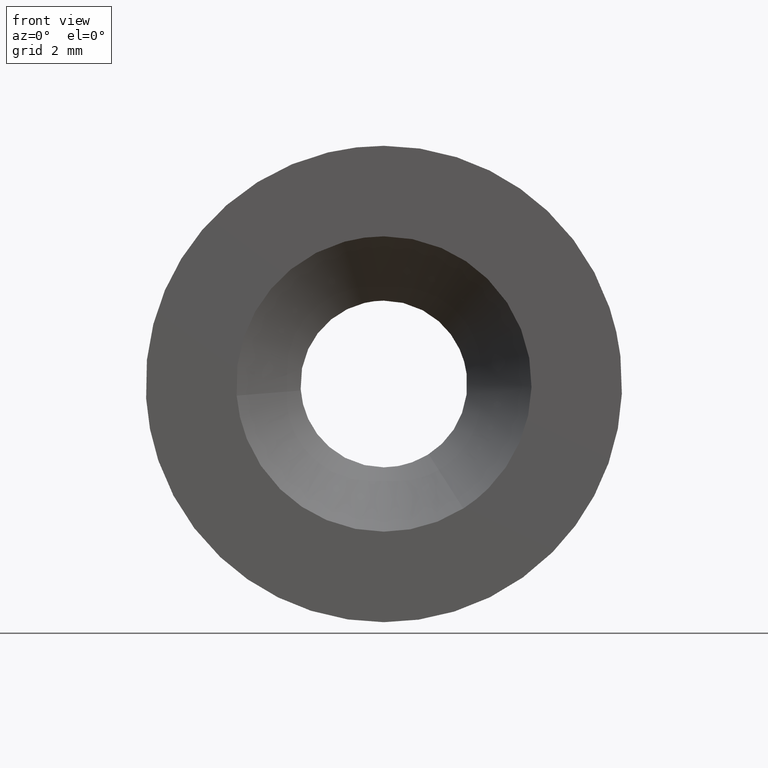
[diagram: clean part render]
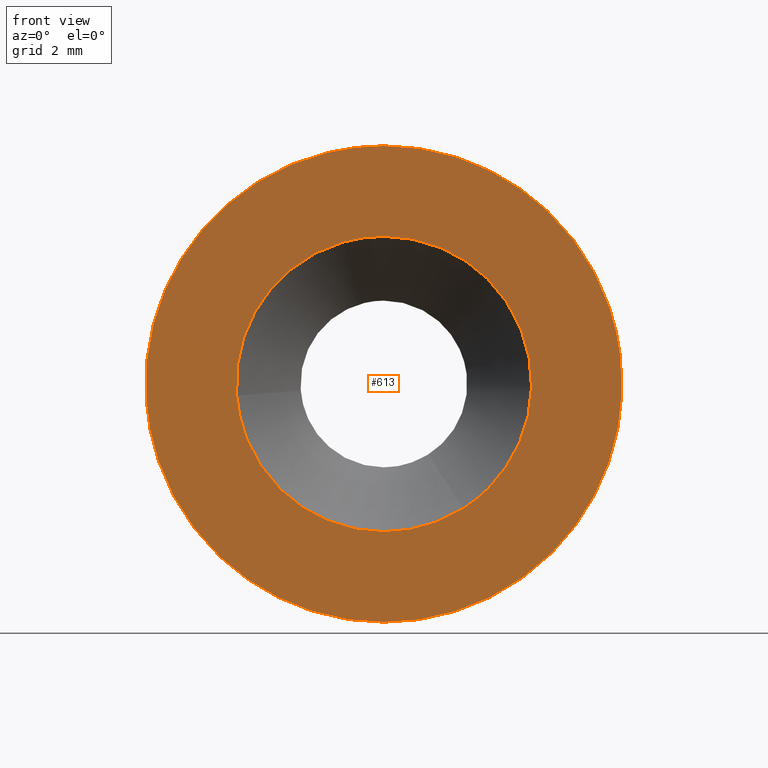
[diagram: same view with one face highlighted and labeled with its STEP entity id]
A machine part, front view. The second image highlights one B-rep face of the part: STEP entity #613.
In plain terms, the highlighted face is a freeform B-spline surface patch.
Its self-contained STEP definition (entity closure, byte-faithful):
#85=CARTESIAN_POINT('',(1.667337459685583,-6.000000000000142,-2.613424151478305));
#86=VERTEX_POINT('',#85);
#92=CARTESIAN_POINT('',(0.0,-6.0,3.100000000000000));
#93=VERTEX_POINT('',#92);
#94=CARTESIAN_POINT('',(0.0,-6.0,3.100000000000000));
#95=CARTESIAN_POINT('',(3.100000000000000,-6.0,3.100000000000000));
#96=CARTESIAN_POINT('',(3.100000000000000,-6.0,0.0));
#97=CARTESIAN_POINT('',(3.100000000000000,-6.0,-1.699400333642098));
#98=CARTESIAN_POINT('',(1.667337459685584,-6.000000000000142,-2.613424151478305));
#106=(BOUNDED_CURVE()B_SPLINE_CURVE(2,(#94,#95,#96,#97,#98),.UNSPECIFIED.,.F.,.U.)B_SPLINE_CURVE_WITH_KNOTS((3,2,3),(0.0,0.250000000000000,0.407950112627304),.UNSPECIFIED.)CURVE()GEOMETRIC_REPRESENTATION_ITEM()RATIONAL_B_SPLINE_CURVE((1.0,0.707106781186547,1.0,0.814949932402566,0.863729296954772))REPRESENTATION_ITEM(''));
#107=EDGE_CURVE('',#93,#86,#106,.T.);
#109=CARTESIAN_POINT('',(-3.090443734573221,-6.000000000001325,-0.243223196766532));
#110=VERTEX_POINT('',#109);
#111=CARTESIAN_POINT('',(-3.090443734573222,-6.000000000001325,-0.243223196766532));
#112=CARTESIAN_POINT('',(-3.100000000000000,-6.0,-0.121799331733931));
#113=CARTESIAN_POINT('',(-3.100000000000000,-6.0,0.0));
#114=CARTESIAN_POINT('',(-3.100000000000000,-6.0,3.100000000000000));
#115=CARTESIAN_POINT('',(0.0,-6.0,3.100000000000000));
#123=(BOUNDED_CURVE()B_SPLINE_CURVE(2,(#111,#112,#113,#114,#115),.UNSPECIFIED.,.F.,.U.)B_SPLINE_CURVE_WITH_KNOTS((3,2,3),(0.736331300631646,0.750000000000000,1.0),.UNSPECIFIED.)CURVE()GEOMETRIC_REPRESENTATION_ITEM()RATIONAL_B_SPLINE_CURVE((0.969723356169475,0.983986122580037,1.0,0.707106781186547,1.0))REPRESENTATION_ITEM(''));
#124=EDGE_CURVE('',#110,#93,#123,.T.);
#228=CARTESIAN_POINT('',(0.0,-6.0,-3.100000000000000));
#229=VERTEX_POINT('',#228);
#230=CARTESIAN_POINT('',(0.0,-6.0,-3.100000000000000));
#231=CARTESIAN_POINT('',(-2.865610524121626,-6.0,-3.100000000000000));
#232=CARTESIAN_POINT('',(-3.090443734573221,-6.000000000001325,-0.243223196766532));
#240=(BOUNDED_CURVE()B_SPLINE_CURVE(2,(#230,#231,#232),.UNSPECIFIED.,.F.,.U.)B_SPLINE_CURVE_WITH_KNOTS((3,3),(0.500000000000000,0.736331300631645),.UNSPECIFIED.)CURVE()GEOMETRIC_REPRESENTATION_ITEM()RATIONAL_B_SPLINE_CURVE((1.0,0.723120658606511,0.969723356169474))REPRESENTATION_ITEM(''));
#241=EDGE_CURVE('',#229,#110,#240,.T.);
#243=CARTESIAN_POINT('',(1.667337459685584,-6.000000000000142,-2.613424151478305));
#244=CARTESIAN_POINT('',(0.904666971678652,-6.000000000000001,-3.100000000000000));
#245=CARTESIAN_POINT('',(0.0,-6.0,-3.100000000000000));
#253=(BOUNDED_CURVE()B_SPLINE_CURVE(2,(#243,#244,#245),.UNSPECIFIED.,.F.,.U.)B_SPLINE_CURVE_WITH_KNOTS((3,3),(0.407950112627304,0.500000000000000),.UNSPECIFIED.)CURVE()GEOMETRIC_REPRESENTATION_ITEM()RATIONAL_B_SPLINE_CURVE((0.863729296954772,0.892156848783981,1.0))REPRESENTATION_ITEM(''));
#254=EDGE_CURVE('',#86,#229,#253,.T.);
#433=CARTESIAN_POINT('',(4.965048002999415,-6.0,0.590168050559857));
#434=VERTEX_POINT('',#433);
#440=CARTESIAN_POINT('',(0.0,-6.0,-5.0));
#441=VERTEX_POINT('',#440);
#442=CARTESIAN_POINT('',(4.965048002999415,-6.000000000000001,0.590168050559857));
#443=CARTESIAN_POINT('',(5.0,-6.0,0.296119020391211));
#444=CARTESIAN_POINT('',(5.0,-6.0,0.0));
#445=CARTESIAN_POINT('',(5.000000000000001,-6.0,-5.000000000000001));
#446=CARTESIAN_POINT('',(0.0,-6.0,-5.0));
#454=(BOUNDED_CURVE()B_SPLINE_CURVE(2,(#442,#443,#444,#445,#446),.UNSPECIFIED.,.F.,.U.)B_SPLINE_CURVE_WITH_KNOTS((3,2,3),(0.229562579808786,0.250000000000000,0.500000000000000),.UNSPECIFIED.)CURVE()GEOMETRIC_REPRESENTATION_ITEM()RATIONAL_B_SPLINE_CURVE((0.956026962526900,0.976056072863809,1.0,0.707106781186548,1.0))REPRESENTATION_ITEM(''));
#455=EDGE_CURVE('',#434,#441,#454,.T.);
#457=CARTESIAN_POINT('',(-4.990674099992546,-6.0,-0.305240933789139));
#458=VERTEX_POINT('',#457);
#459=CARTESIAN_POINT('',(0.0,-6.0,-5.0));
#460=CARTESIAN_POINT('',(-4.703532000033385,-6.0,-5.000000000000001));
#461=CARTESIAN_POINT('',(-4.990674099992546,-6.0,-0.305240933789139));
#469=(BOUNDED_CURVE()B_SPLINE_CURVE(2,(#459,#460,#461),.UNSPECIFIED.,.F.,.U.)B_SPLINE_CURVE_WITH_KNOTS((3,3),(0.500000000000000,0.739333023226263),.UNSPECIFIED.)CURVE()GEOMETRIC_REPRESENTATION_ITEM()RATIONAL_B_SPLINE_CURVE((1.0,0.719603921835620,0.976072172374189))REPRESENTATION_ITEM(''));
#470=EDGE_CURVE('',#441,#458,#469,.T.);
#544=CARTESIAN_POINT('',(0.0,-6.0,5.0));
#545=VERTEX_POINT('',#544);
#546=CARTESIAN_POINT('',(-4.990674099992546,-6.0,-0.305240933789139));
#547=CARTESIAN_POINT('',(-4.999999999999999,-6.000000000000001,-0.152762932077514));
#548=CARTESIAN_POINT('',(-5.0,-6.0,0.0));
#549=CARTESIAN_POINT('',(-5.000000000000001,-6.0,5.000000000000001));
#550=CARTESIAN_POINT('',(0.0,-6.0,5.0));
#558=(BOUNDED_CURVE()B_SPLINE_CURVE(2,(#546,#547,#548,#549,#550),.UNSPECIFIED.,.F.,.U.)B_SPLINE_CURVE_WITH_KNOTS((3,2,3),(0.739333023226263,0.750000000000000,1.0),.UNSPECIFIED.)CURVE()GEOMETRIC_REPRESENTATION_ITEM()RATIONAL_B_SPLINE_CURVE((0.976072172374189,0.987502859350927,1.0,0.707106781186548,1.0))REPRESENTATION_ITEM(''));
#559=EDGE_CURVE('',#458,#545,#558,.T.);
#561=CARTESIAN_POINT('',(0.0,-6.0,5.0));
#562=CARTESIAN_POINT('',(4.440875442468177,-6.000000000000001,5.0));
#563=CARTESIAN_POINT('',(4.965048002999415,-6.000000000000001,0.590168050559857));
#571=(BOUNDED_CURVE()B_SPLINE_CURVE(2,(#561,#562,#563),.UNSPECIFIED.,.F.,.U.)B_SPLINE_CURVE_WITH_KNOTS((3,3),(0.0,0.229562579808786),.UNSPECIFIED.)CURVE()GEOMETRIC_REPRESENTATION_ITEM()RATIONAL_B_SPLINE_CURVE((1.0,0.731050708322738,0.956026962526900))REPRESENTATION_ITEM(''));
#572=EDGE_CURVE('',#545,#434,#571,.T.);
#596=CARTESIAN_POINT('',(-5.499378285062313,-6.0,-5.499499980618060));
#597=CARTESIAN_POINT('',(-5.499378285062313,-6.0,5.499500248838961));
#598=CARTESIAN_POINT('',(5.499409041059016,-6.0,-5.499499980618060));
#599=CARTESIAN_POINT('',(5.499409041059016,-6.0,5.499500248838961));
#600=B_SPLINE_SURFACE_WITH_KNOTS('',1,1,((#596,#598),(#597,#599)),.UNSPECIFIED.,.F.,.F.,.U.,(2,2),(2,2),(0.0,10.999000229457019),(0.0,10.998787326121329),.UNSPECIFIED.);
#601=ORIENTED_EDGE('',*,*,#559,.F.);
#602=ORIENTED_EDGE('',*,*,#470,.F.);
#603=ORIENTED_EDGE('',*,*,#455,.F.);
#604=ORIENTED_EDGE('',*,*,#572,.F.);
#605=EDGE_LOOP('',(#601,#602,#603,#604));
#606=FACE_OUTER_BOUND('',#605,.T.);
#607=ORIENTED_EDGE('',*,*,#241,.T.);
#608=ORIENTED_EDGE('',*,*,#124,.T.);
#609=ORIENTED_EDGE('',*,*,#107,.T.);
#610=ORIENTED_EDGE('',*,*,#254,.T.);
#611=EDGE_LOOP('',(#607,#608,#609,#610));
#612=FACE_BOUND('',#611,.T.);
#613=ADVANCED_FACE('',(#606,#612),#600,.F.);